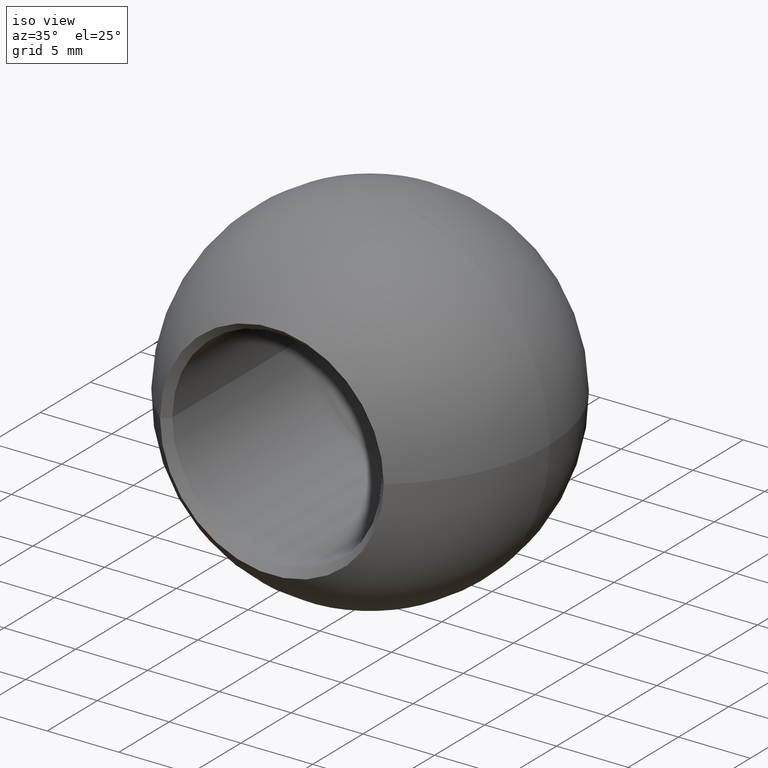
[diagram: clean part render]
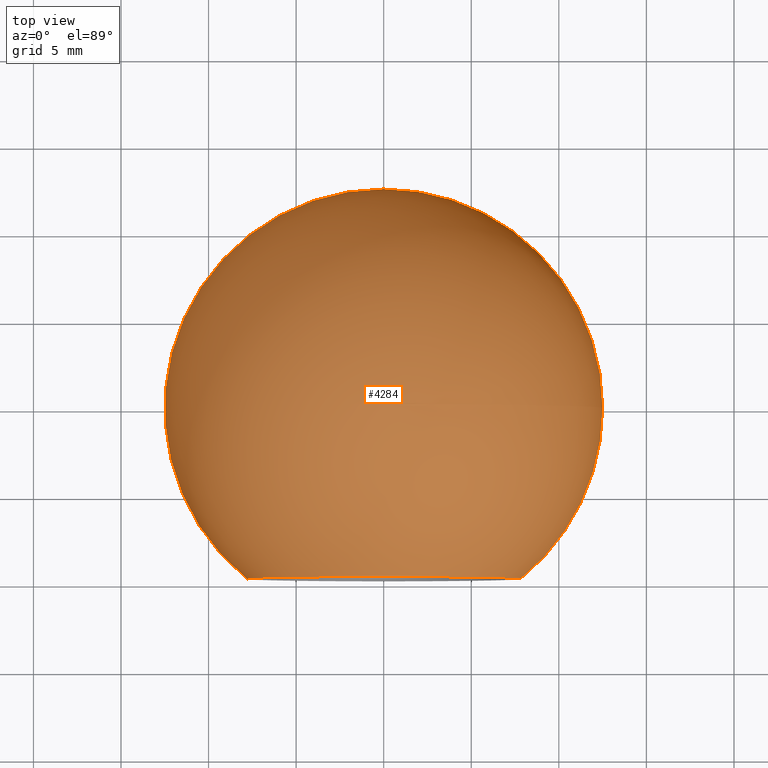
[diagram: tour spotlight — one face highlighted and labeled with its STEP entity id]
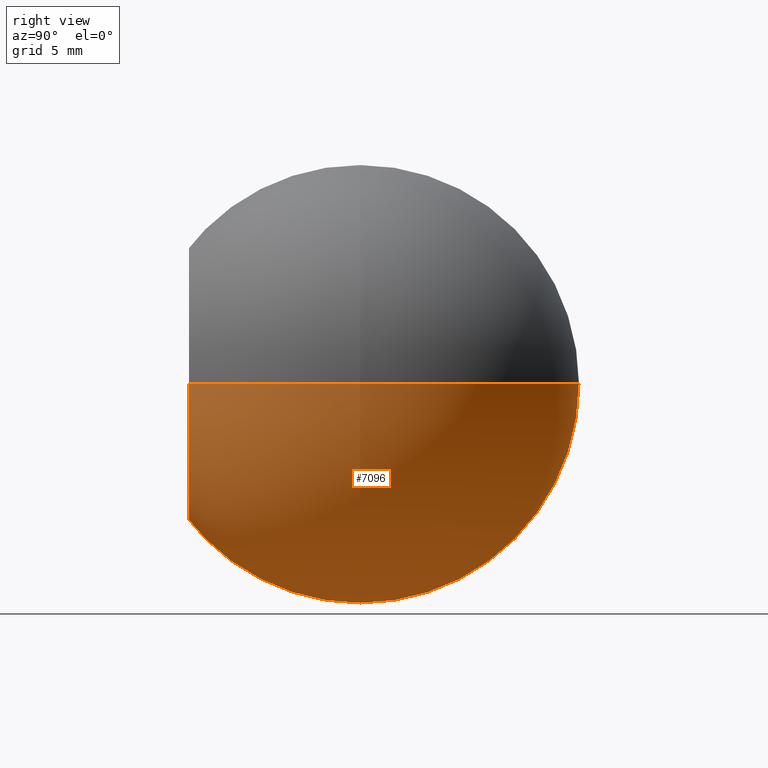
[diagram: tour spotlight — one face highlighted and labeled with its STEP entity id]
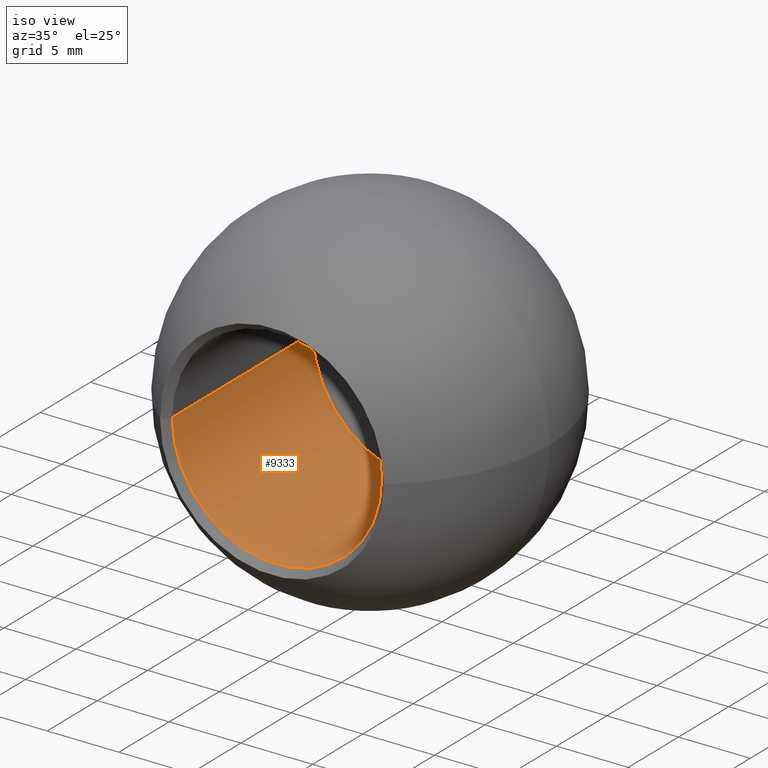
[diagram: tour spotlight — one face highlighted and labeled with its STEP entity id]
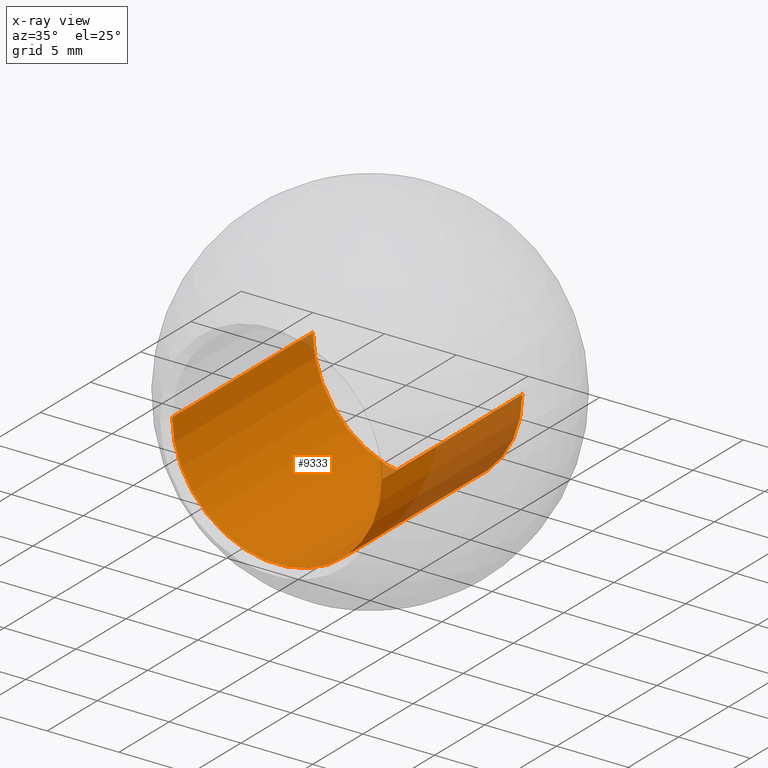
[diagram: x-ray of the same camera — body ghosted, this tour face saturated]
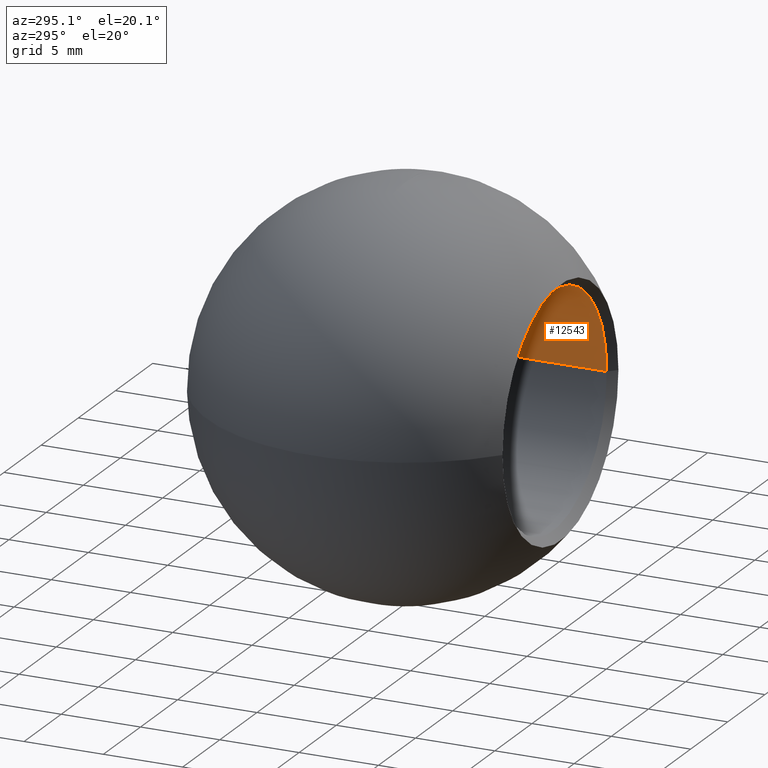
[diagram: tour spotlight — one face highlighted and labeled with its STEP entity id]
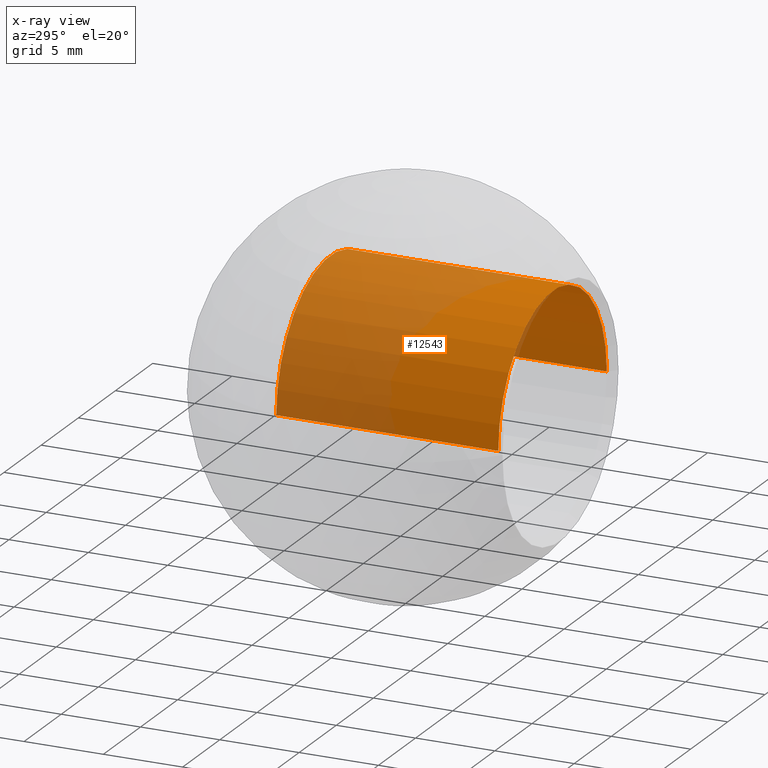
[diagram: x-ray of the same camera — body ghosted, this tour face saturated]
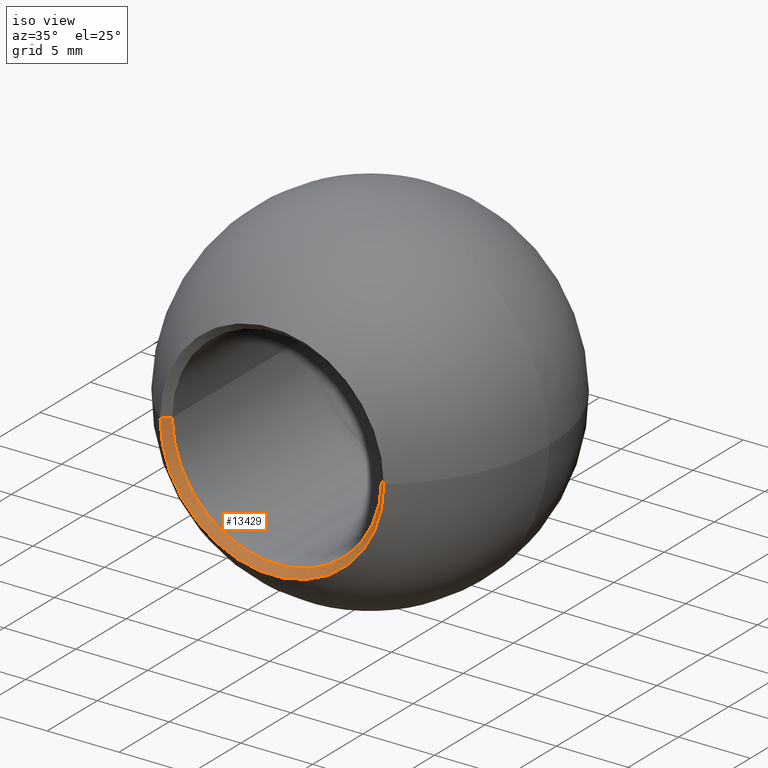
[diagram: tour spotlight — one face highlighted and labeled with its STEP entity id]
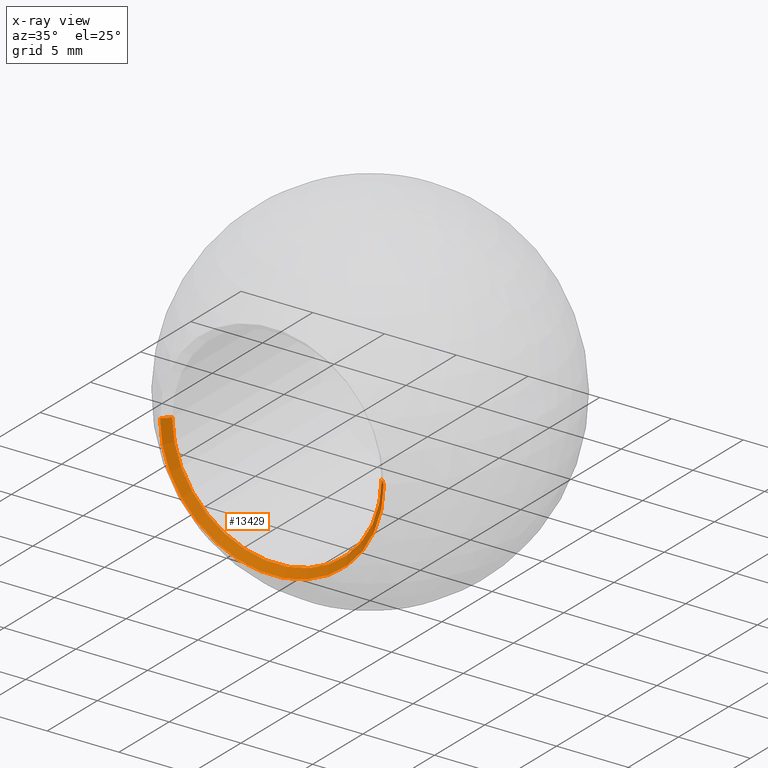
[diagram: x-ray of the same camera — body ghosted, this tour face saturated]
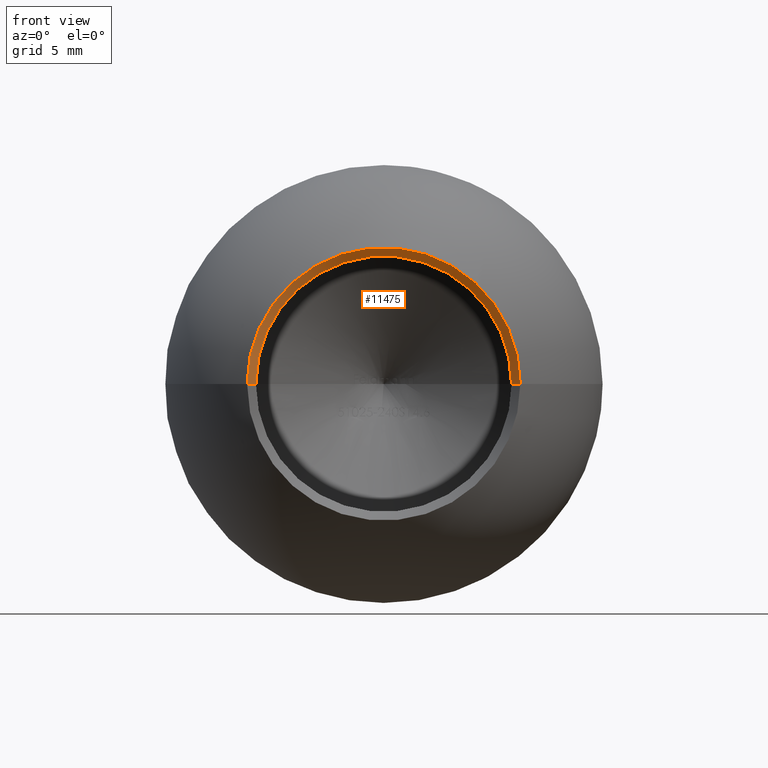
[diagram: tour spotlight — one face highlighted and labeled with its STEP entity id]
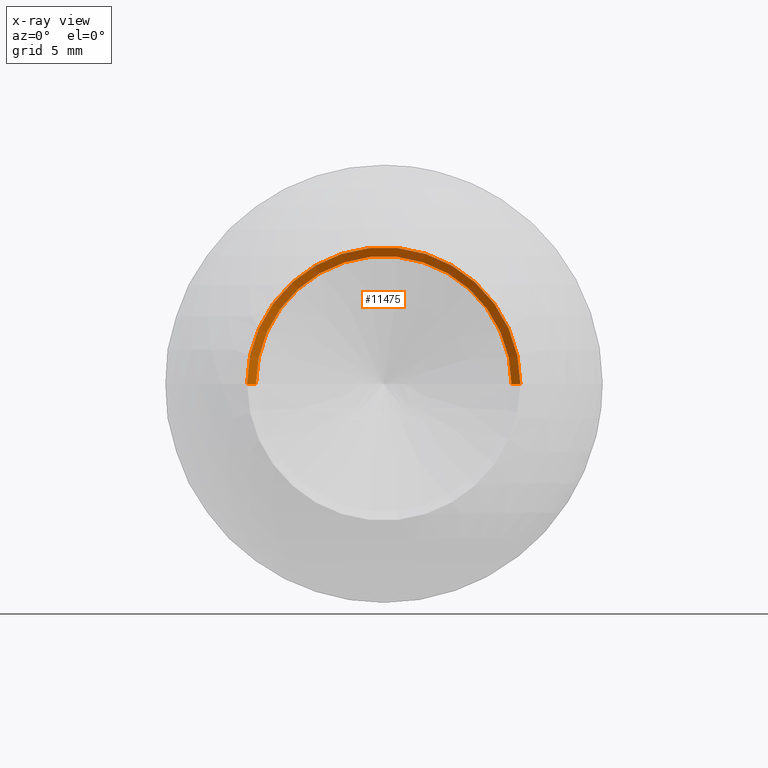
[diagram: x-ray of the same camera — body ghosted, this tour face saturated]
A machine part: a face-by-face anatomy tour. The part has 292 B-rep faces; the first image is the clean iso view, then the 6 largest visible faces are spotlighted one at a time (largest first), each with its STEP entity span.

Face 1 — top view, entity #4284. In plain terms, the highlighted spherical surface has radius 12.5 mm.
Definition (entity closure, byte-faithful):
#76 = FACE_OUTER_BOUND ( 'NONE', #7439, .T. ) ;
#352 = ORIENTED_EDGE ( 'NONE', *, *, #8393, .F. ) ;
#1157 = CIRCLE ( 'NONE', #11960, 12.50000000000000000 ) ;
#1217 = EDGE_CURVE ( 'NONE', #13884, #1859, #1157, .T. ) ;
#1320 = AXIS2_PLACEMENT_3D ( 'NONE', #9824, #3235, #9871 ) ;
#1475 = CARTESIAN_POINT ( 'NONE',  ( 0.0000000000000000000, 0.0000000000000000000, 0.0000000000000000000 ) ) ;
#1859 = VERTEX_POINT ( 'NONE', #5335 ) ;
#2334 = EDGE_CURVE ( 'NONE', #12379, #1859, #5109, .T. ) ;
#3108 = ORIENTED_EDGE ( 'NONE', *, *, #2334, .F. ) ;
#3235 = DIRECTION ( 'NONE',  ( 0.0000000000000000000, 0.0000000000000000000, -1.000000000000000000 ) ) ;
#3717 = CARTESIAN_POINT ( 'NONE',  ( 7.800000000000004300, -9.767804256842984100, 0.0000000000000000000 ) ) ;
#3774 = DIRECTION ( 'NONE',  ( 1.000000000000000000, 0.0000000000000000000, -1.224646799147353200E-016 ) ) ;
#4217 = CARTESIAN_POINT ( 'NONE',  ( 0.0000000000000000000, 0.0000000000000000000, 0.0000000000000000000 ) ) ;
#4284 = ADVANCED_FACE ( 'NONE', ( #76 ), #9387, .T. ) ;
#4532 = CIRCLE ( 'NONE', #1320, 12.50000000000000000 ) ;
#4892 = DIRECTION ( 'NONE',  ( 1.224646799147353200E-016, -3.128828630031807100E-032, 1.000000000000000000 ) ) ;
#5109 = CIRCLE ( 'NONE', #9772, 7.800000000000009600 ) ;
#5335 = CARTESIAN_POINT ( 'NONE',  ( -7.800000000000014000, -9.767804256842980600, 9.552245033349366400E-016 ) ) ;
#6052 = DIRECTION ( 'NONE',  ( 1.000000000000000000, -2.224004456380518900E-016, 0.0000000000000000000 ) ) ;
#7439 = EDGE_LOOP ( 'NONE', ( #352, #11031, #3108 ) ) ;
#7719 = DIRECTION ( 'NONE',  ( 1.000000000000000000, -2.554882462608990100E-016, 0.0000000000000000000 ) ) ;
#8393 = EDGE_CURVE ( 'NONE', #13884, #12379, #4532, .T. ) ;
#8510 = CARTESIAN_POINT ( 'NONE',  ( 3.959007327728333100E-015, 12.50000000000000000, 0.0000000000000000000 ) ) ;
#9387 = SPHERICAL_SURFACE ( 'NONE', #9420, 12.50000000000000000 ) ;
#9420 = AXIS2_PLACEMENT_3D ( 'NONE', #4217, #14137, #7719 ) ;
#9772 = AXIS2_PLACEMENT_3D ( 'NONE', #13719, #12608, #6052 ) ;
#9824 = CARTESIAN_POINT ( 'NONE',  ( 0.0000000000000000000, 0.0000000000000000000, 0.0000000000000000000 ) ) ;
#9871 = DIRECTION ( 'NONE',  ( -1.000000000000000000, 0.0000000000000000000, 0.0000000000000000000 ) ) ;
#11031 = ORIENTED_EDGE ( 'NONE', *, *, #1217, .T. ) ;
#11960 = AXIS2_PLACEMENT_3D ( 'NONE', #1475, #4892, #3774 ) ;
#12379 = VERTEX_POINT ( 'NONE', #3717 ) ;
#12608 = DIRECTION ( 'NONE',  ( -2.554882462608990100E-016, -1.000000000000000000, -0.0000000000000000000 ) ) ;
#13719 = CARTESIAN_POINT ( 'NONE',  ( -5.689162257661795700E-015, -9.767804256842982400, 0.0000000000000000000 ) ) ;
#13884 = VERTEX_POINT ( 'NONE', #8510 ) ;
#14137 = DIRECTION ( 'NONE',  ( -0.0000000000000000000, 0.0000000000000000000, 1.000000000000000000 ) ) ;

Face 2 — right view, entity #7096. In plain terms, the highlighted spherical surface has radius 12.5 mm.
Definition (entity closure, byte-faithful):
#348 = DIRECTION ( 'NONE',  ( -0.0000000000000000000, 0.0000000000000000000, 1.000000000000000000 ) ) ;
#1157 = CIRCLE ( 'NONE', #11960, 12.50000000000000000 ) ;
#1217 = EDGE_CURVE ( 'NONE', #13884, #1859, #1157, .T. ) ;
#1320 = AXIS2_PLACEMENT_3D ( 'NONE', #9824, #3235, #9871 ) ;
#1475 = CARTESIAN_POINT ( 'NONE',  ( 0.0000000000000000000, 0.0000000000000000000, 0.0000000000000000000 ) ) ;
#1859 = VERTEX_POINT ( 'NONE', #5335 ) ;
#3235 = DIRECTION ( 'NONE',  ( 0.0000000000000000000, 0.0000000000000000000, -1.000000000000000000 ) ) ;
#3636 = AXIS2_PLACEMENT_3D ( 'NONE', #5965, #11764, #13538 ) ;
#3717 = CARTESIAN_POINT ( 'NONE',  ( 7.800000000000004300, -9.767804256842984100, 0.0000000000000000000 ) ) ;
#3774 = DIRECTION ( 'NONE',  ( 1.000000000000000000, 0.0000000000000000000, -1.224646799147353200E-016 ) ) ;
#4096 = ORIENTED_EDGE ( 'NONE', *, *, #1217, .F. ) ;
#4532 = CIRCLE ( 'NONE', #1320, 12.50000000000000000 ) ;
#4892 = DIRECTION ( 'NONE',  ( 1.224646799147353200E-016, -3.128828630031807100E-032, 1.000000000000000000 ) ) ;
#5250 = ORIENTED_EDGE ( 'NONE', *, *, #8393, .T. ) ;
#5335 = CARTESIAN_POINT ( 'NONE',  ( -7.800000000000014000, -9.767804256842980600, 9.552245033349366400E-016 ) ) ;
#5965 = CARTESIAN_POINT ( 'NONE',  ( -5.689162257661795700E-015, -9.767804256842982400, 0.0000000000000000000 ) ) ;
#6968 = FACE_OUTER_BOUND ( 'NONE', #8402, .T. ) ;
#7096 = ADVANCED_FACE ( 'NONE', ( #6968 ), #10724, .T. ) ;
#7103 = CIRCLE ( 'NONE', #3636, 7.800000000000009600 ) ;
#7180 = ORIENTED_EDGE ( 'NONE', *, *, #10757, .F. ) ;
#8393 = EDGE_CURVE ( 'NONE', #13884, #12379, #4532, .T. ) ;
#8402 = EDGE_LOOP ( 'NONE', ( #4096, #5250, #7180 ) ) ;
#8510 = CARTESIAN_POINT ( 'NONE',  ( 3.959007327728333100E-015, 12.50000000000000000, 0.0000000000000000000 ) ) ;
#9103 = DIRECTION ( 'NONE',  ( 1.000000000000000000, -2.554882462608990100E-016, 0.0000000000000000000 ) ) ;
#9824 = CARTESIAN_POINT ( 'NONE',  ( 0.0000000000000000000, 0.0000000000000000000, 0.0000000000000000000 ) ) ;
#9871 = DIRECTION ( 'NONE',  ( -1.000000000000000000, 0.0000000000000000000, 0.0000000000000000000 ) ) ;
#10724 = SPHERICAL_SURFACE ( 'NONE', #11443, 12.50000000000000000 ) ;
#10757 = EDGE_CURVE ( 'NONE', #1859, #12379, #7103, .T. ) ;
#11443 = AXIS2_PLACEMENT_3D ( 'NONE', #13549, #348, #9103 ) ;
#11764 = DIRECTION ( 'NONE',  ( -2.554882462608990100E-016, -1.000000000000000000, -0.0000000000000000000 ) ) ;
#11960 = AXIS2_PLACEMENT_3D ( 'NONE', #1475, #4892, #3774 ) ;
#12379 = VERTEX_POINT ( 'NONE', #3717 ) ;
#13538 = DIRECTION ( 'NONE',  ( 1.000000000000000000, -2.224004456380518900E-016, 0.0000000000000000000 ) ) ;
#13549 = CARTESIAN_POINT ( 'NONE',  ( 0.0000000000000000000, 0.0000000000000000000, 0.0000000000000000000 ) ) ;
#13884 = VERTEX_POINT ( 'NONE', #8510 ) ;

Face 3 — iso view, entity #9333. An x-ray twin of the same camera follows (body ghosted, this face saturated) — the face is partly hidden behind the body. In plain terms, the highlighted cylindrical surface (partial cylindrical patch) has radius 7.3 mm, axis along (-0, -1, -0).
Definition (entity closure, byte-faithful):
#117 = CARTESIAN_POINT ( 'NONE',  ( -7.300000000000012300, -9.267804256842966400, 9.246083333562526600E-016 ) ) ;
#405 = VERTEX_POINT ( 'NONE', #3337 ) ;
#417 = DIRECTION ( 'NONE',  ( -2.554882462608990100E-016, -1.000000000000000000, -0.0000000000000000000 ) ) ;
#994 = CARTESIAN_POINT ( 'NONE',  ( 7.299999999999997200, 4.732195743157013200, 0.0000000000000000000 ) ) ;
#1057 = CARTESIAN_POINT ( 'NONE',  ( -1.984582686878760500E-015, 4.732195743157015000, 0.0000000000000000000 ) ) ;
#2073 = VERTEX_POINT ( 'NONE', #994 ) ;
#2133 = DIRECTION ( 'NONE',  ( 1.000000000000000000, -2.376333528735349700E-016, 0.0000000000000000000 ) ) ;
#2273 = DIRECTION ( 'NONE',  ( -2.554882462608990100E-016, -1.000000000000000000, -0.0000000000000000000 ) ) ;
#2423 = LINE ( 'NONE', #7069, #7418 ) ;
#3337 = CARTESIAN_POINT ( 'NONE',  ( 7.300000000000001600, -9.267804256842969900, 0.0000000000000000000 ) ) ;
#3474 = EDGE_LOOP ( 'NONE', ( #10643, #8499, #9838, #12354 ) ) ;
#3579 = VERTEX_POINT ( 'NONE', #8047 ) ;
#3886 = EDGE_CURVE ( 'NONE', #3579, #2073, #7329, .T. ) ;
#4494 = DIRECTION ( 'NONE',  ( 1.000000000000000000, -2.376333528735351700E-016, 0.0000000000000000000 ) ) ;
#5205 = AXIS2_PLACEMENT_3D ( 'NONE', #8674, #2273, #2133 ) ;
#5439 = DIRECTION ( 'NONE',  ( -2.554882462608990100E-016, -1.000000000000000000, -0.0000000000000000000 ) ) ;
#5949 = DIRECTION ( 'NONE',  ( -2.554882462608990100E-016, -1.000000000000000000, -0.0000000000000000000 ) ) ;
#6241 = CIRCLE ( 'NONE', #5205, 7.300000000000006900 ) ;
#6744 = VECTOR ( 'NONE', #417, 1000.000000000000000 ) ;
#7069 = CARTESIAN_POINT ( 'NONE',  ( -7.300000000000005200, 9.118478262058177500, 8.939921633775684700E-016 ) ) ;
#7197 = DIRECTION ( 'NONE',  ( 1.000000000000000000, -2.376333528735350700E-016, 0.0000000000000000000 ) ) ;
#7329 = CIRCLE ( 'NONE', #12811, 7.300000000000001600 ) ;
#7418 = VECTOR ( 'NONE', #5949, 1000.000000000000000 ) ;
#8047 = CARTESIAN_POINT ( 'NONE',  ( -7.300000000000000700, 4.732195743157016700, 8.939921633775676900E-016 ) ) ;
#8103 = VERTEX_POINT ( 'NONE', #117 ) ;
#8249 = DIRECTION ( 'NONE',  ( -2.554882462608990100E-016, -1.000000000000000000, -0.0000000000000000000 ) ) ;
#8499 = ORIENTED_EDGE ( 'NONE', *, *, #11983, .T. ) ;
#8674 = CARTESIAN_POINT ( 'NONE',  ( -5.561418134531342400E-015, -9.267804256842968200, 0.0000000000000000000 ) ) ;
#8995 = CYLINDRICAL_SURFACE ( 'NONE', #12277, 7.300000000000004300 ) ;
#9153 = FACE_OUTER_BOUND ( 'NONE', #3474, .T. ) ;
#9333 = ADVANCED_FACE ( 'NONE', ( #9153 ), #8995, .F. ) ;
#9587 = EDGE_CURVE ( 'NONE', #8103, #405, #6241, .T. ) ;
#9838 = ORIENTED_EDGE ( 'NONE', *, *, #9587, .T. ) ;
#10472 = CARTESIAN_POINT ( 'NONE',  ( 7.300000000000003400, 9.118478262058175700, 0.0000000000000000000 ) ) ;
#10643 = ORIENTED_EDGE ( 'NONE', *, *, #3886, .F. ) ;
#11206 = EDGE_CURVE ( 'NONE', #2073, #405, #14097, .T. ) ;
#11684 = CARTESIAN_POINT ( 'NONE',  ( -8.639390585198639000E-016, 9.118478262058175700, 0.0000000000000000000 ) ) ;
#11983 = EDGE_CURVE ( 'NONE', #3579, #8103, #2423, .T. ) ;
#12277 = AXIS2_PLACEMENT_3D ( 'NONE', #11684, #8249, #7197 ) ;
#12354 = ORIENTED_EDGE ( 'NONE', *, *, #11206, .F. ) ;
#12811 = AXIS2_PLACEMENT_3D ( 'NONE', #1057, #5439, #4494 ) ;
#14097 = LINE ( 'NONE', #10472, #6744 ) ;

Face 4 — auxiliary view, entity #12543. An x-ray twin of the same camera follows (body ghosted, this face saturated) — the face is partly hidden behind the body. In plain terms, the highlighted cylindrical surface (partial cylindrical patch) has radius 7.3 mm, axis along (-0, -1, -0).
Definition (entity closure, byte-faithful):
#117 = CARTESIAN_POINT ( 'NONE',  ( -7.300000000000012300, -9.267804256842966400, 9.246083333562526600E-016 ) ) ;
#138 = AXIS2_PLACEMENT_3D ( 'NONE', #6318, #8575, #14170 ) ;
#242 = DIRECTION ( 'NONE',  ( 1.000000000000000000, -2.376333528735349700E-016, 0.0000000000000000000 ) ) ;
#405 = VERTEX_POINT ( 'NONE', #3337 ) ;
#417 = DIRECTION ( 'NONE',  ( -2.554882462608990100E-016, -1.000000000000000000, -0.0000000000000000000 ) ) ;
#994 = CARTESIAN_POINT ( 'NONE',  ( 7.299999999999997200, 4.732195743157013200, 0.0000000000000000000 ) ) ;
#2073 = VERTEX_POINT ( 'NONE', #994 ) ;
#2147 = DIRECTION ( 'NONE',  ( -2.554882462608990100E-016, -1.000000000000000000, -0.0000000000000000000 ) ) ;
#2176 = ORIENTED_EDGE ( 'NONE', *, *, #11206, .T. ) ;
#2355 = DIRECTION ( 'NONE',  ( -2.554882462608990100E-016, -1.000000000000000000, -0.0000000000000000000 ) ) ;
#2423 = LINE ( 'NONE', #7069, #7418 ) ;
#2900 = ORIENTED_EDGE ( 'NONE', *, *, #11983, .F. ) ;
#2908 = EDGE_LOOP ( 'NONE', ( #2900, #7427, #2176, #3953 ) ) ;
#3337 = CARTESIAN_POINT ( 'NONE',  ( 7.300000000000001600, -9.267804256842969900, 0.0000000000000000000 ) ) ;
#3579 = VERTEX_POINT ( 'NONE', #8047 ) ;
#3953 = ORIENTED_EDGE ( 'NONE', *, *, #11897, .T. ) ;
#5949 = DIRECTION ( 'NONE',  ( -2.554882462608990100E-016, -1.000000000000000000, -0.0000000000000000000 ) ) ;
#6318 = CARTESIAN_POINT ( 'NONE',  ( -8.639390585198639000E-016, 9.118478262058175700, 0.0000000000000000000 ) ) ;
#6485 = AXIS2_PLACEMENT_3D ( 'NONE', #14193, #2147, #13131 ) ;
#6728 = CYLINDRICAL_SURFACE ( 'NONE', #138, 7.300000000000004300 ) ;
#6744 = VECTOR ( 'NONE', #417, 1000.000000000000000 ) ;
#6753 = CARTESIAN_POINT ( 'NONE',  ( -5.561418134531342400E-015, -9.267804256842968200, 0.0000000000000000000 ) ) ;
#7069 = CARTESIAN_POINT ( 'NONE',  ( -7.300000000000005200, 9.118478262058177500, 8.939921633775684700E-016 ) ) ;
#7418 = VECTOR ( 'NONE', #5949, 1000.000000000000000 ) ;
#7427 = ORIENTED_EDGE ( 'NONE', *, *, #7859, .F. ) ;
#7859 = EDGE_CURVE ( 'NONE', #2073, #3579, #10711, .T. ) ;
#8047 = CARTESIAN_POINT ( 'NONE',  ( -7.300000000000000700, 4.732195743157016700, 8.939921633775676900E-016 ) ) ;
#8103 = VERTEX_POINT ( 'NONE', #117 ) ;
#8575 = DIRECTION ( 'NONE',  ( -2.554882462608990100E-016, -1.000000000000000000, -0.0000000000000000000 ) ) ;
#9986 = CIRCLE ( 'NONE', #10004, 7.300000000000006900 ) ;
#10004 = AXIS2_PLACEMENT_3D ( 'NONE', #6753, #2355, #242 ) ;
#10472 = CARTESIAN_POINT ( 'NONE',  ( 7.300000000000003400, 9.118478262058175700, 0.0000000000000000000 ) ) ;
#10711 = CIRCLE ( 'NONE', #6485, 7.300000000000001600 ) ;
#11206 = EDGE_CURVE ( 'NONE', #2073, #405, #14097, .T. ) ;
#11897 = EDGE_CURVE ( 'NONE', #405, #8103, #9986, .T. ) ;
#11983 = EDGE_CURVE ( 'NONE', #3579, #8103, #2423, .T. ) ;
#12376 = FACE_OUTER_BOUND ( 'NONE', #2908, .T. ) ;
#12543 = ADVANCED_FACE ( 'NONE', ( #12376 ), #6728, .F. ) ;
#13131 = DIRECTION ( 'NONE',  ( 1.000000000000000000, -2.376333528735351700E-016, 0.0000000000000000000 ) ) ;
#14097 = LINE ( 'NONE', #10472, #6744 ) ;
#14170 = DIRECTION ( 'NONE',  ( 1.000000000000000000, -2.376333528735350700E-016, 0.0000000000000000000 ) ) ;
#14193 = CARTESIAN_POINT ( 'NONE',  ( -1.984582686878760500E-015, 4.732195743157015000, 0.0000000000000000000 ) ) ;

Face 5 — iso view, entity #13429. An x-ray twin of the same camera follows (body ghosted, this face saturated) — the face is partly hidden behind the body. In plain terms, the highlighted conical surface has half-angle 45 deg.
Definition (entity closure, byte-faithful):
#117 = CARTESIAN_POINT ( 'NONE',  ( -7.300000000000012300, -9.267804256842966400, 9.246083333562526600E-016 ) ) ;
#257 = VECTOR ( 'NONE', #6393, 999.9999999999998900 ) ;
#405 = VERTEX_POINT ( 'NONE', #3337 ) ;
#728 = EDGE_CURVE ( 'NONE', #8103, #1859, #11986, .T. ) ;
#845 = CARTESIAN_POINT ( 'NONE',  ( 7.300000000000001600, -9.267804256842969900, 0.0000000000000000000 ) ) ;
#1800 = DIRECTION ( 'NONE',  ( -2.554882462608990100E-016, -1.000000000000000000, -0.0000000000000000000 ) ) ;
#1859 = VERTEX_POINT ( 'NONE', #5335 ) ;
#2133 = DIRECTION ( 'NONE',  ( 1.000000000000000000, -2.376333528735349700E-016, 0.0000000000000000000 ) ) ;
#2273 = DIRECTION ( 'NONE',  ( -2.554882462608990100E-016, -1.000000000000000000, -0.0000000000000000000 ) ) ;
#2499 = DIRECTION ( 'NONE',  ( -0.7071067811865392500, -0.7071067811865559000, 8.659560562354829300E-017 ) ) ;
#2907 = FACE_OUTER_BOUND ( 'NONE', #11602, .T. ) ;
#3337 = CARTESIAN_POINT ( 'NONE',  ( 7.300000000000001600, -9.267804256842969900, 0.0000000000000000000 ) ) ;
#3524 = LINE ( 'NONE', #845, #257 ) ;
#3636 = AXIS2_PLACEMENT_3D ( 'NONE', #5965, #11764, #13538 ) ;
#3717 = CARTESIAN_POINT ( 'NONE',  ( 7.800000000000004300, -9.767804256842984100, 0.0000000000000000000 ) ) ;
#4169 = DIRECTION ( 'NONE',  ( 1.000000000000000000, -2.376333528735349700E-016, 0.0000000000000000000 ) ) ;
#5205 = AXIS2_PLACEMENT_3D ( 'NONE', #8674, #2273, #2133 ) ;
#5335 = CARTESIAN_POINT ( 'NONE',  ( -7.800000000000014000, -9.767804256842980600, 9.552245033349366400E-016 ) ) ;
#5606 = EDGE_CURVE ( 'NONE', #405, #12379, #3524, .T. ) ;
#5965 = CARTESIAN_POINT ( 'NONE',  ( -5.689162257661795700E-015, -9.767804256842982400, 0.0000000000000000000 ) ) ;
#6241 = CIRCLE ( 'NONE', #5205, 7.300000000000006900 ) ;
#6393 = DIRECTION ( 'NONE',  ( 0.7071067811865388000, -0.7071067811865563400, 0.0000000000000000000 ) ) ;
#6504 = ORIENTED_EDGE ( 'NONE', *, *, #5606, .F. ) ;
#7030 = VECTOR ( 'NONE', #2499, 999.9999999999998900 ) ;
#7103 = CIRCLE ( 'NONE', #3636, 7.800000000000009600 ) ;
#7528 = CARTESIAN_POINT ( 'NONE',  ( -5.561418134531342400E-015, -9.267804256842968200, 0.0000000000000000000 ) ) ;
#7990 = CARTESIAN_POINT ( 'NONE',  ( -7.300000000000012300, -9.267804256842966400, 8.939921633775686700E-016 ) ) ;
#8103 = VERTEX_POINT ( 'NONE', #117 ) ;
#8674 = CARTESIAN_POINT ( 'NONE',  ( -5.561418134531342400E-015, -9.267804256842968200, 0.0000000000000000000 ) ) ;
#8977 = ORIENTED_EDGE ( 'NONE', *, *, #10757, .T. ) ;
#9587 = EDGE_CURVE ( 'NONE', #8103, #405, #6241, .T. ) ;
#10025 = ORIENTED_EDGE ( 'NONE', *, *, #9587, .F. ) ;
#10150 = CONICAL_SURFACE ( 'NONE', #11186, 7.300000000000006900, 0.7853981633974361800 ) ;
#10757 = EDGE_CURVE ( 'NONE', #1859, #12379, #7103, .T. ) ;
#11186 = AXIS2_PLACEMENT_3D ( 'NONE', #7528, #1800, #4169 ) ;
#11602 = EDGE_LOOP ( 'NONE', ( #10025, #13755, #8977, #6504 ) ) ;
#11764 = DIRECTION ( 'NONE',  ( -2.554882462608990100E-016, -1.000000000000000000, -0.0000000000000000000 ) ) ;
#11986 = LINE ( 'NONE', #7990, #7030 ) ;
#12379 = VERTEX_POINT ( 'NONE', #3717 ) ;
#13429 = ADVANCED_FACE ( 'NONE', ( #2907 ), #10150, .F. ) ;
#13538 = DIRECTION ( 'NONE',  ( 1.000000000000000000, -2.224004456380518900E-016, 0.0000000000000000000 ) ) ;
#13755 = ORIENTED_EDGE ( 'NONE', *, *, #728, .T. ) ;

Face 6 — front view, entity #11475. An x-ray twin of the same camera follows (body ghosted, this face saturated) — the face is partly hidden behind the body. In plain terms, the highlighted conical surface has half-angle 45 deg.
Definition (entity closure, byte-faithful):
#117 = CARTESIAN_POINT ( 'NONE',  ( -7.300000000000012300, -9.267804256842966400, 9.246083333562526600E-016 ) ) ;
#242 = DIRECTION ( 'NONE',  ( 1.000000000000000000, -2.376333528735349700E-016, 0.0000000000000000000 ) ) ;
#257 = VECTOR ( 'NONE', #6393, 999.9999999999998900 ) ;
#405 = VERTEX_POINT ( 'NONE', #3337 ) ;
#728 = EDGE_CURVE ( 'NONE', #8103, #1859, #11986, .T. ) ;
#845 = CARTESIAN_POINT ( 'NONE',  ( 7.300000000000001600, -9.267804256842969900, 0.0000000000000000000 ) ) ;
#1859 = VERTEX_POINT ( 'NONE', #5335 ) ;
#2257 = FACE_OUTER_BOUND ( 'NONE', #2813, .T. ) ;
#2334 = EDGE_CURVE ( 'NONE', #12379, #1859, #5109, .T. ) ;
#2355 = DIRECTION ( 'NONE',  ( -2.554882462608990100E-016, -1.000000000000000000, -0.0000000000000000000 ) ) ;
#2499 = DIRECTION ( 'NONE',  ( -0.7071067811865392500, -0.7071067811865559000, 8.659560562354829300E-017 ) ) ;
#2813 = EDGE_LOOP ( 'NONE', ( #5551, #9338, #8551, #6757 ) ) ;
#3304 = CARTESIAN_POINT ( 'NONE',  ( -5.561418134531342400E-015, -9.267804256842968200, 0.0000000000000000000 ) ) ;
#3337 = CARTESIAN_POINT ( 'NONE',  ( 7.300000000000001600, -9.267804256842969900, 0.0000000000000000000 ) ) ;
#3524 = LINE ( 'NONE', #845, #257 ) ;
#3717 = CARTESIAN_POINT ( 'NONE',  ( 7.800000000000004300, -9.767804256842984100, 0.0000000000000000000 ) ) ;
#5109 = CIRCLE ( 'NONE', #9772, 7.800000000000009600 ) ;
#5327 = DIRECTION ( 'NONE',  ( -2.554882462608990100E-016, -1.000000000000000000, -0.0000000000000000000 ) ) ;
#5335 = CARTESIAN_POINT ( 'NONE',  ( -7.800000000000014000, -9.767804256842980600, 9.552245033349366400E-016 ) ) ;
#5551 = ORIENTED_EDGE ( 'NONE', *, *, #728, .F. ) ;
#5606 = EDGE_CURVE ( 'NONE', #405, #12379, #3524, .T. ) ;
#6052 = DIRECTION ( 'NONE',  ( 1.000000000000000000, -2.224004456380518900E-016, 0.0000000000000000000 ) ) ;
#6393 = DIRECTION ( 'NONE',  ( 0.7071067811865388000, -0.7071067811865563400, 0.0000000000000000000 ) ) ;
#6753 = CARTESIAN_POINT ( 'NONE',  ( -5.561418134531342400E-015, -9.267804256842968200, 0.0000000000000000000 ) ) ;
#6757 = ORIENTED_EDGE ( 'NONE', *, *, #2334, .T. ) ;
#7030 = VECTOR ( 'NONE', #2499, 999.9999999999998900 ) ;
#7990 = CARTESIAN_POINT ( 'NONE',  ( -7.300000000000012300, -9.267804256842966400, 8.939921633775686700E-016 ) ) ;
#8103 = VERTEX_POINT ( 'NONE', #117 ) ;
#8551 = ORIENTED_EDGE ( 'NONE', *, *, #5606, .T. ) ;
#8969 = CONICAL_SURFACE ( 'NONE', #9259, 7.300000000000006900, 0.7853981633974361800 ) ;
#9259 = AXIS2_PLACEMENT_3D ( 'NONE', #3304, #5327, #13188 ) ;
#9338 = ORIENTED_EDGE ( 'NONE', *, *, #11897, .F. ) ;
#9772 = AXIS2_PLACEMENT_3D ( 'NONE', #13719, #12608, #6052 ) ;
#9986 = CIRCLE ( 'NONE', #10004, 7.300000000000006900 ) ;
#10004 = AXIS2_PLACEMENT_3D ( 'NONE', #6753, #2355, #242 ) ;
#11475 = ADVANCED_FACE ( 'NONE', ( #2257 ), #8969, .F. ) ;
#11897 = EDGE_CURVE ( 'NONE', #405, #8103, #9986, .T. ) ;
#11986 = LINE ( 'NONE', #7990, #7030 ) ;
#12379 = VERTEX_POINT ( 'NONE', #3717 ) ;
#12608 = DIRECTION ( 'NONE',  ( -2.554882462608990100E-016, -1.000000000000000000, -0.0000000000000000000 ) ) ;
#13188 = DIRECTION ( 'NONE',  ( 1.000000000000000000, -2.376333528735349700E-016, 0.0000000000000000000 ) ) ;
#13719 = CARTESIAN_POINT ( 'NONE',  ( -5.689162257661795700E-015, -9.767804256842982400, 0.0000000000000000000 ) ) ;